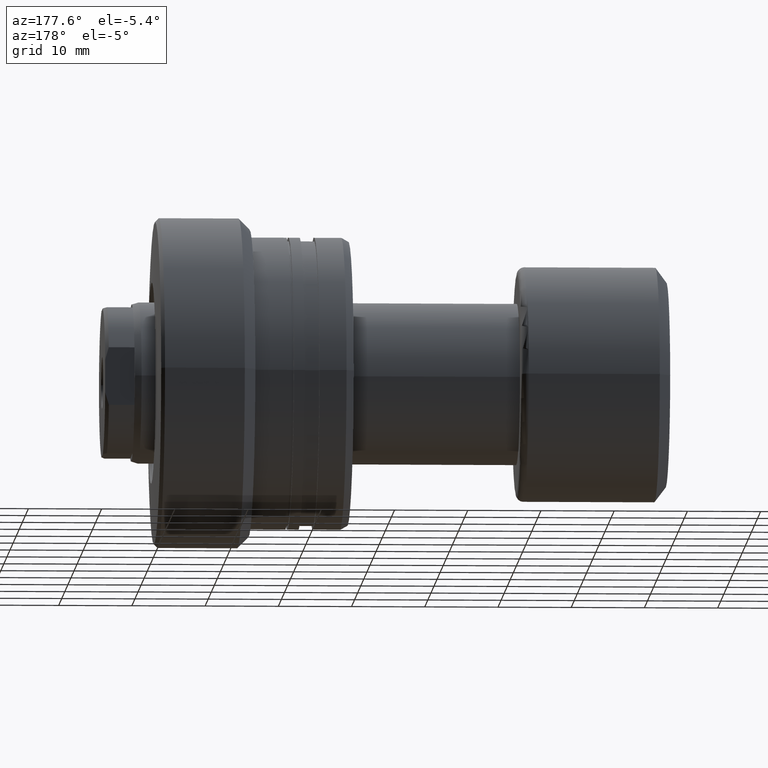
[diagram: clean part render]
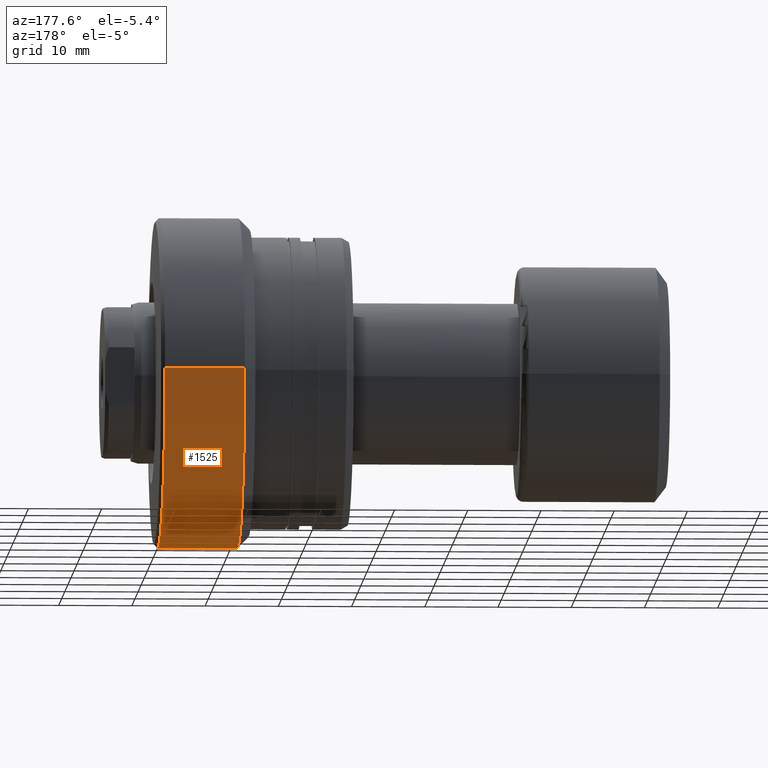
[diagram: same view with one face highlighted and labeled with its STEP entity id]
A machine part, auxiliary view. The second image highlights one B-rep face of the part: STEP entity #1525.
In plain terms, the highlighted cylindrical surface (partial cylindrical patch) has radius 22.5 mm, axis along (-1, 0, 0).
Its self-contained STEP definition (entity closure, byte-faithful):
#201 = AXIS2_PLACEMENT_3D ( 'NONE', #1694, #2255, #584 ) ;
#202 = CIRCLE ( 'NONE', #1545, 22.49999999999996092 ) ;
#225 = ORIENTED_EDGE ( 'NONE', *, *, #2051, .F. ) ;
#258 = DIRECTION ( 'NONE',  ( -1.000000000000000000, 1.333885945136072597E-15, -0.000000000000000000 ) ) ;
#279 = LINE ( 'NONE', #1584, #1346 ) ;
#309 = CIRCLE ( 'NONE', #201, 22.49999999999997513 ) ;
#337 = AXIS2_PLACEMENT_3D ( 'NONE', #1062, #2134, #935 ) ;
#390 = CARTESIAN_POINT ( 'NONE',  ( -12.50000000000068212, -22.49999999999999645, 2.755455298081541622E-15 ) ) ;
#432 = VERTEX_POINT ( 'NONE', #541 ) ;
#464 = CARTESIAN_POINT ( 'NONE',  ( -30.28002276692735606, -22.49999999999996803, 0.000000000000000000 ) ) ;
#541 = CARTESIAN_POINT ( 'NONE',  ( -12.50000000000062350, 22.49999999999995026, 0.000000000000000000 ) ) ;
#584 = DIRECTION ( 'NONE',  ( -1.310679959626922274E-15, -1.000000000000000000, 0.000000000000000000 ) ) ;
#599 = VECTOR ( 'NONE', #258, 1000.000000000000000 ) ;
#766 = EDGE_CURVE ( 'NONE', #2168, #1042, #857, .T. ) ;
#816 = VERTEX_POINT ( 'NONE', #2334 ) ;
#857 = LINE ( 'NONE', #464, #599 ) ;
#873 = CYLINDRICAL_SURFACE ( 'NONE', #337, 22.49999999999996803 ) ;
#935 = DIRECTION ( 'NONE',  ( -1.387778780781447648E-15, -1.000000000000000000, 0.000000000000000000 ) ) ;
#1042 = VERTEX_POINT ( 'NONE', #390 ) ;
#1062 = CARTESIAN_POINT ( 'NONE',  ( -30.28002276692732408, 0.000000000000000000, 0.000000000000000000 ) ) ;
#1240 = CARTESIAN_POINT ( 'NONE',  ( -1.600000000000696865, -22.50000000000000000, 0.000000000000000000 ) ) ;
#1346 = VECTOR ( 'NONE', #1383, 1000.000000000000000 ) ;
#1373 = DIRECTION ( 'NONE',  ( -1.329954664915554407E-15, -1.000000000000000000, 0.000000000000000000 ) ) ;
#1383 = DIRECTION ( 'NONE',  ( -1.000000000000000000, 1.333885945136072597E-15, -0.000000000000000000 ) ) ;
#1525 = ADVANCED_FACE ( 'NONE', ( #1807 ), #873, .T. ) ;
#1545 = AXIS2_PLACEMENT_3D ( 'NONE', #2290, #1727, #1373 ) ;
#1584 = CARTESIAN_POINT ( 'NONE',  ( -30.28002276692729211, 22.49999999999996803, 2.755455298081540833E-15 ) ) ;
#1621 = EDGE_LOOP ( 'NONE', ( #1866, #2411, #2365, #225 ) ) ;
#1694 = CARTESIAN_POINT ( 'NONE',  ( -12.50000000000065370, -2.371652247300287340E-14, 0.000000000000000000 ) ) ;
#1727 = DIRECTION ( 'NONE',  ( -1.000000000000000000, 1.333885945136072597E-15, -0.000000000000000000 ) ) ;
#1807 = FACE_OUTER_BOUND ( 'NONE', #1621, .T. ) ;
#1866 = ORIENTED_EDGE ( 'NONE', *, *, #2425, .F. ) ;
#2051 = EDGE_CURVE ( 'NONE', #432, #1042, #309, .T. ) ;
#2134 = DIRECTION ( 'NONE',  ( -1.000000000000000000, 1.333885945136072597E-15, -0.000000000000000000 ) ) ;
#2152 = EDGE_CURVE ( 'NONE', #816, #2168, #202, .T. ) ;
#2168 = VERTEX_POINT ( 'NONE', #1240 ) ;
#2255 = DIRECTION ( 'NONE',  ( -1.000000000000000000, 1.333885945136072597E-15, -0.000000000000000000 ) ) ;
#2290 = CARTESIAN_POINT ( 'NONE',  ( -1.600000000000666889, -3.825587927498604708E-14, 0.000000000000000000 ) ) ;
#2334 = CARTESIAN_POINT ( 'NONE',  ( -1.600000000000636913, 22.49999999999992184, 2.755455298081540439E-15 ) ) ;
#2365 = ORIENTED_EDGE ( 'NONE', *, *, #766, .T. ) ;
#2411 = ORIENTED_EDGE ( 'NONE', *, *, #2152, .T. ) ;
#2425 = EDGE_CURVE ( 'NONE', #816, #432, #279, .T. ) ;